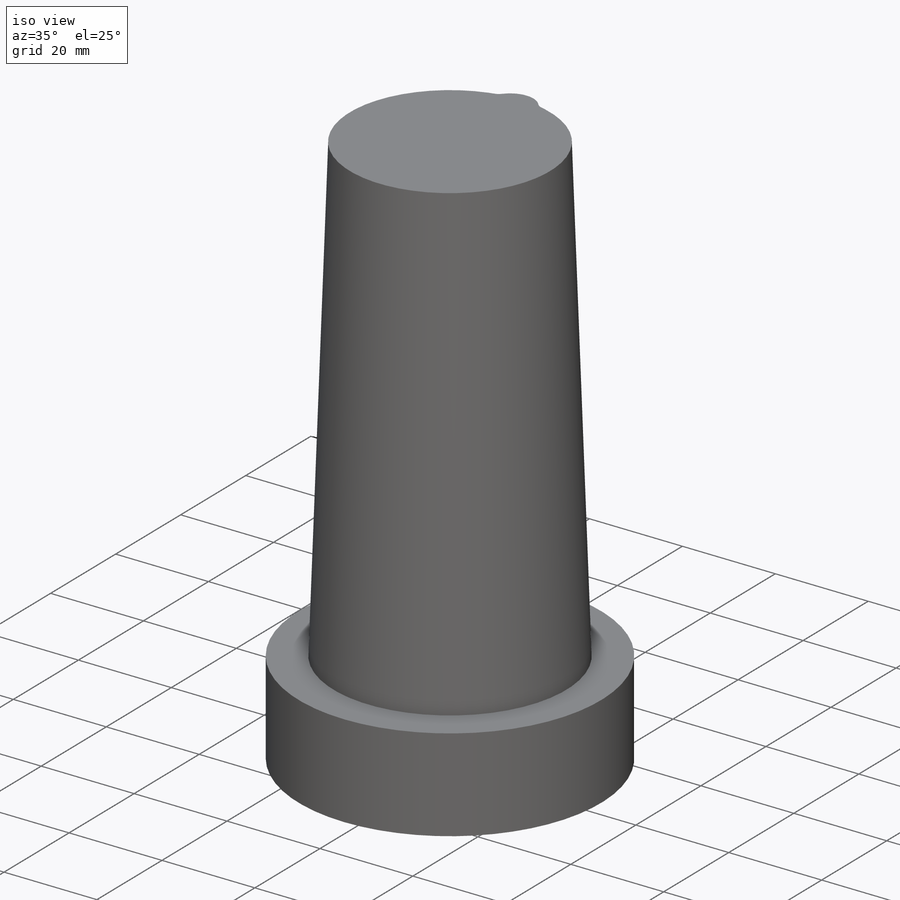
[diagram: iso view]
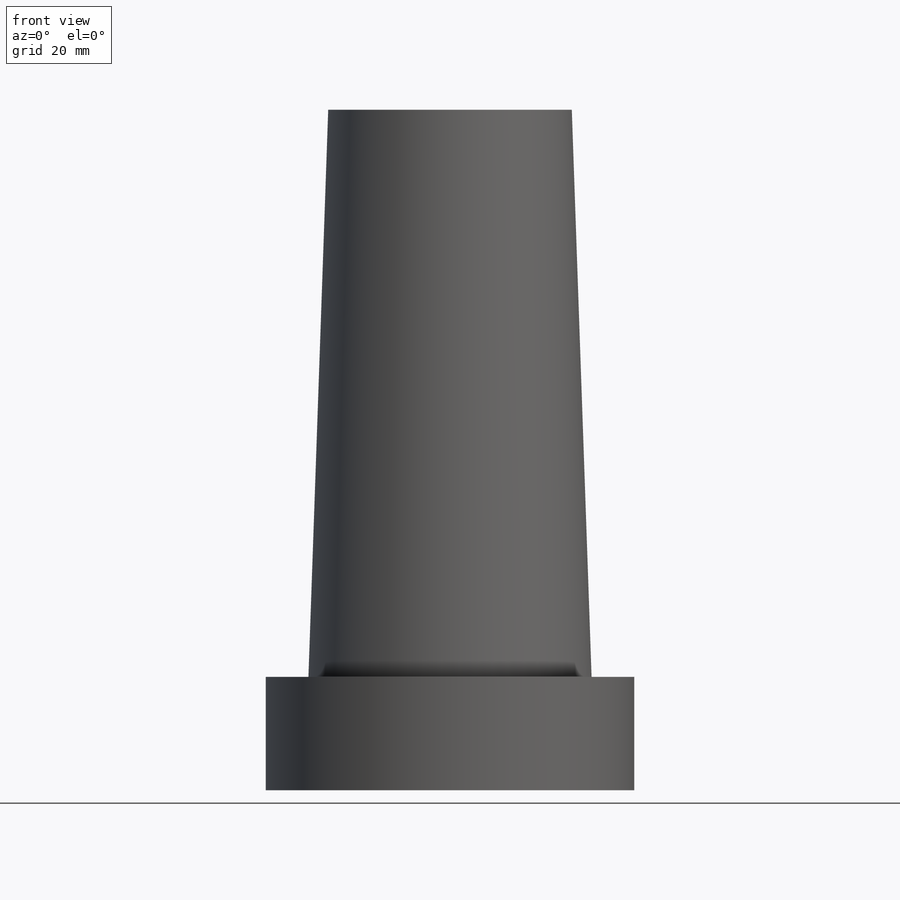
[diagram: front view]
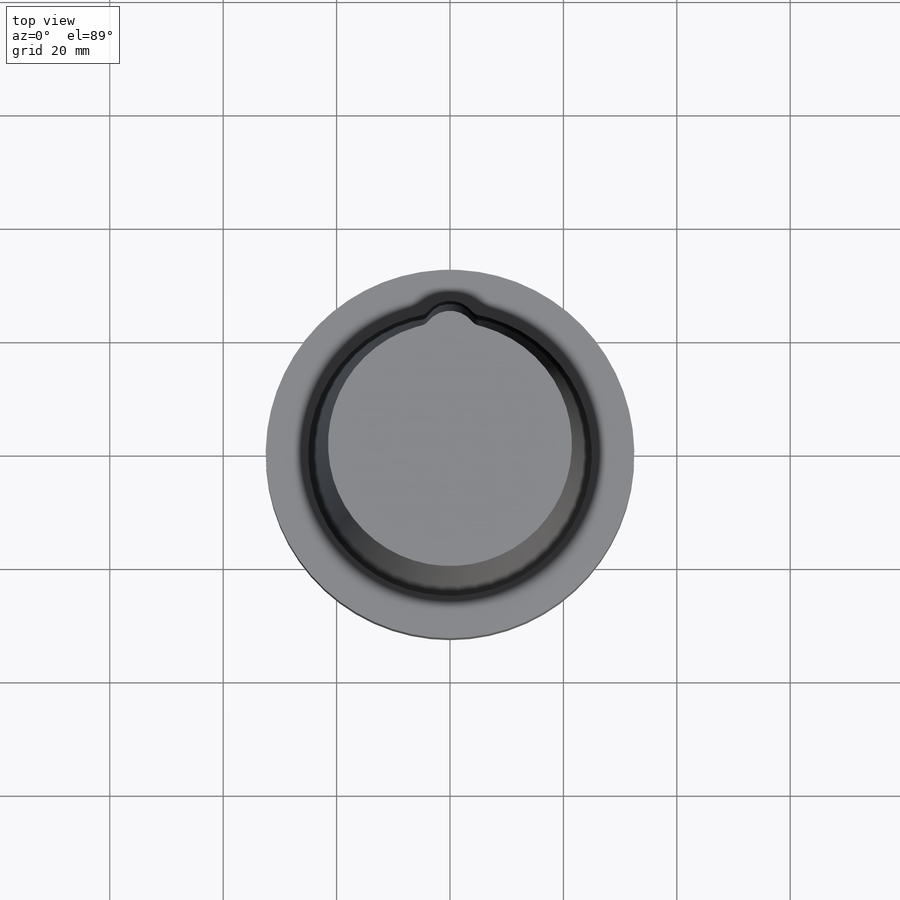
[diagram: top view]
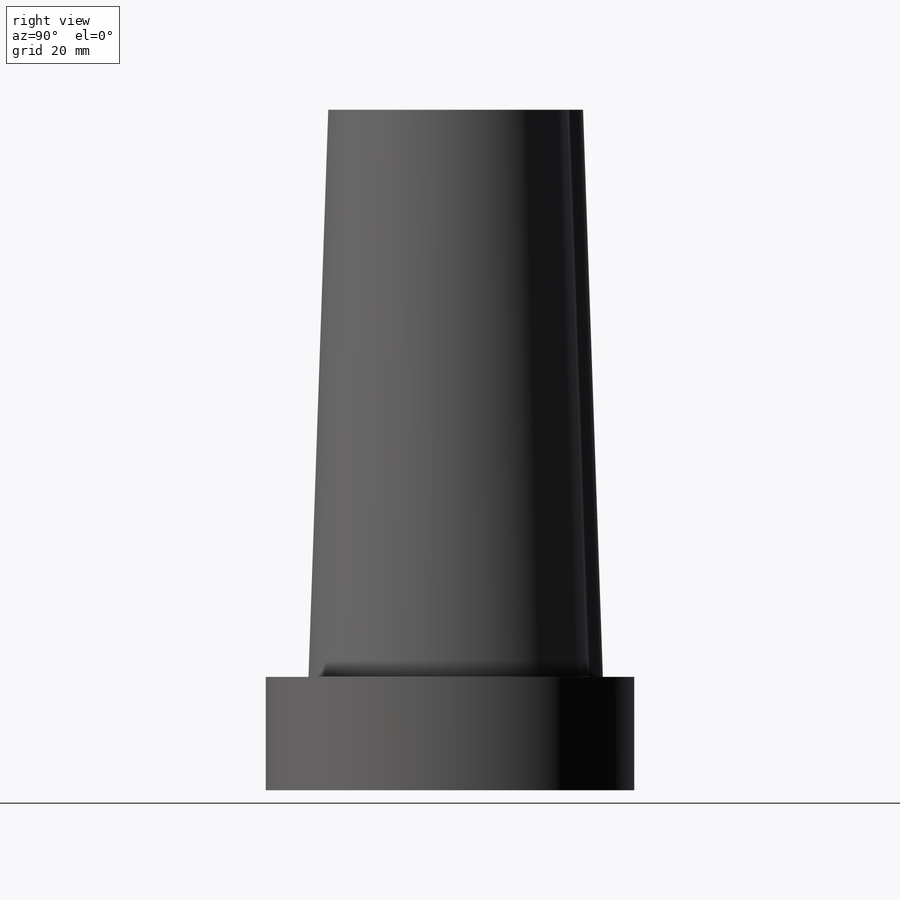
[diagram: right view]
SOLIDWORKS PART (.sldprt)
format: sldprt  version: not decoded by parser v0  size: 315,904 bytes
history: native  units: mm
features: sketch x5, plane x3, extrude x2, material x1, sweep x1, fillet x1 (+8 scaffold rows collapsed)
feature tree (21):
  scaffold x8  (default folders/planes/origin — collapsed)
  material  "Material <nicht festgelegt>"
  plane  "Vorne"
  plane  "Oben"
  plane  "Rechts"
  sketch  "3D-Skizze1"  dims[D1=20.0mm]
  sketch  "Skizze1"  dims[D1=50.0mm]
  extrude  "Aufsatz-Linear austragen1"  Depth=100mm
  sketch  "Skizze2"  dims[D1=65.0mm]
  extrude  "Aufsatz-Linear austragen2"  Depth=20mm
  sketch  "Skizze6"
  sketch  "Skizze8"  dims[D1=10.0mm D2=3.0mm]
  sweep  "Austragung6"
  fillet  "Verrundung1"  Radius=2mm
decode coverage: 7 of 9 modeling features carry decoded parameters
note: suppression state not decoded; provenance and decode notes live in map.json
